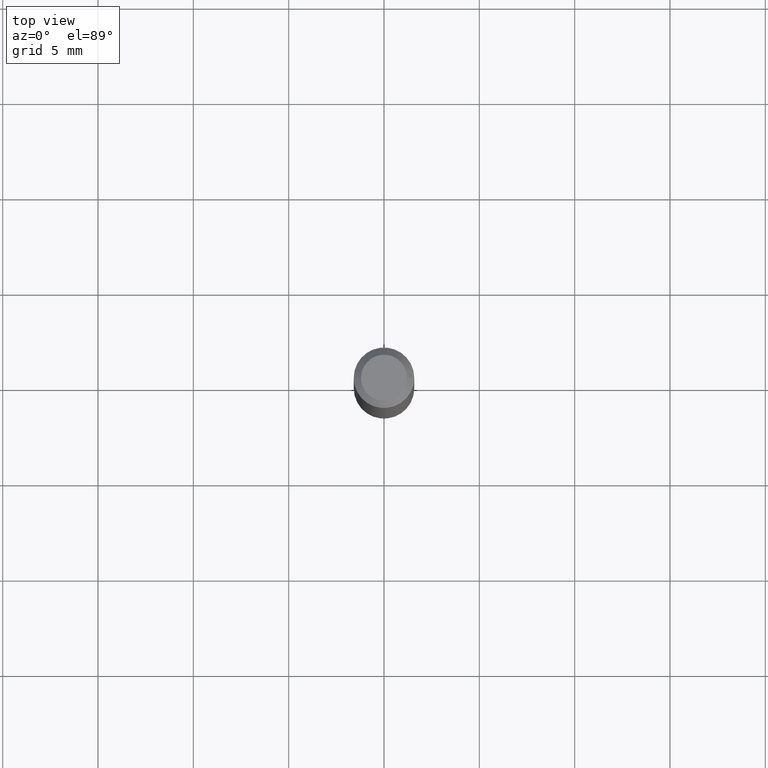
[diagram: clean part render]
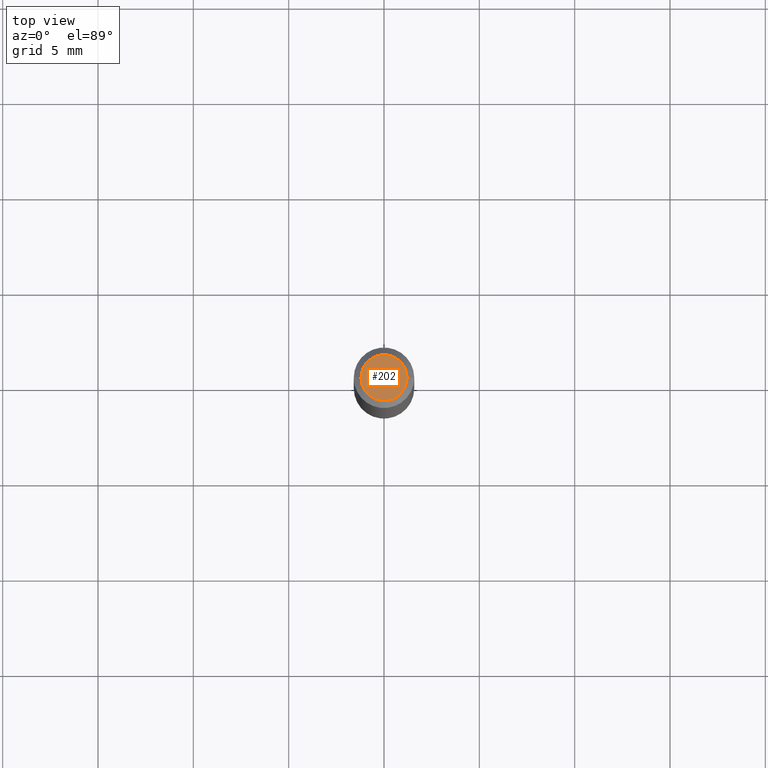
[diagram: same view with one face highlighted and labeled with its STEP entity id]
A machine part, top view. The second image highlights one B-rep face of the part: STEP entity #202.
In plain terms, the highlighted planar face has unit normal (0, -0, -1).
Its self-contained STEP definition (entity closure, byte-faithful):
#48 = CARTESIAN_POINT ( 'NONE',  ( 2.080290297812910479E-44, -2.970103211220577886E-30, -8.506713692488703374E-16 ) ) ;
#52 = DIRECTION ( 'NONE',  ( -1.000000000000000000, 6.982962677686265922E-15, -4.876176775795935793E-29 ) ) ;
#60 = ORIENTED_EDGE ( 'NONE', *, *, #425, .T. ) ;
#79 = DIRECTION ( 'NONE',  ( 1.000000000000000000, -6.982962677686267499E-15, 4.852736867747366768E-29 ) ) ;
#120 = VERTEX_POINT ( 'NONE', #180 ) ;
#139 = CIRCLE ( 'NONE', #426, 0.04749999999999999362 ) ;
#156 = CARTESIAN_POINT ( 'NONE',  ( 2.080290297812910479E-44, -2.970103211220577886E-30, -8.506713692488703374E-16 ) ) ;
#179 = EDGE_CURVE ( 'NONE', #410, #120, #139, .T. ) ;
#180 = CARTESIAN_POINT ( 'NONE',  ( -0.04749999999999999362, 3.578768372314195715E-16, -8.506713692488727040E-16 ) ) ;
#191 = DIRECTION ( 'NONE',  ( -2.445468806185136597E-29, 3.491481338843145583E-15, 1.000000000000000000 ) ) ;
#202 = ADVANCED_FACE ( 'NONE', ( #297 ), #270, .F. ) ;
#265 = DIRECTION ( 'NONE',  ( 2.438088387897960049E-29, -3.491481338843145188E-15, -1.000000000000000000 ) ) ;
#270 = PLANE ( 'NONE',  #382 ) ;
#294 = CIRCLE ( 'NONE', #324, 0.04749999999999999362 ) ;
#297 = FACE_OUTER_BOUND ( 'NONE', #398, .T. ) ;
#324 = AXIS2_PLACEMENT_3D ( 'NONE', #156, #191, #342 ) ;
#342 = DIRECTION ( 'NONE',  ( 1.000000000000000000, -6.982962677686267499E-15, 4.852736867747366768E-29 ) ) ;
#381 = ORIENTED_EDGE ( 'NONE', *, *, #179, .T. ) ;
#382 = AXIS2_PLACEMENT_3D ( 'NONE', #447, #265, #52 ) ;
#394 = DIRECTION ( 'NONE',  ( -2.445468806185136597E-29, 3.491481338843145583E-15, 1.000000000000000000 ) ) ;
#398 = EDGE_LOOP ( 'NONE', ( #60, #381 ) ) ;
#410 = VERTEX_POINT ( 'NONE', #463 ) ;
#425 = EDGE_CURVE ( 'NONE', #120, #410, #294, .T. ) ;
#426 = AXIS2_PLACEMENT_3D ( 'NONE', #48, #394, #79 ) ;
#447 = CARTESIAN_POINT ( 'NONE',  ( 3.316907271900976096E-16, 0.04749999999999999362, -5.911810482194846144E-16 ) ) ;
#463 = CARTESIAN_POINT ( 'NONE',  ( 0.04749999999999999362, -4.035134999187593414E-16, -8.506713692488677736E-16 ) ) ;